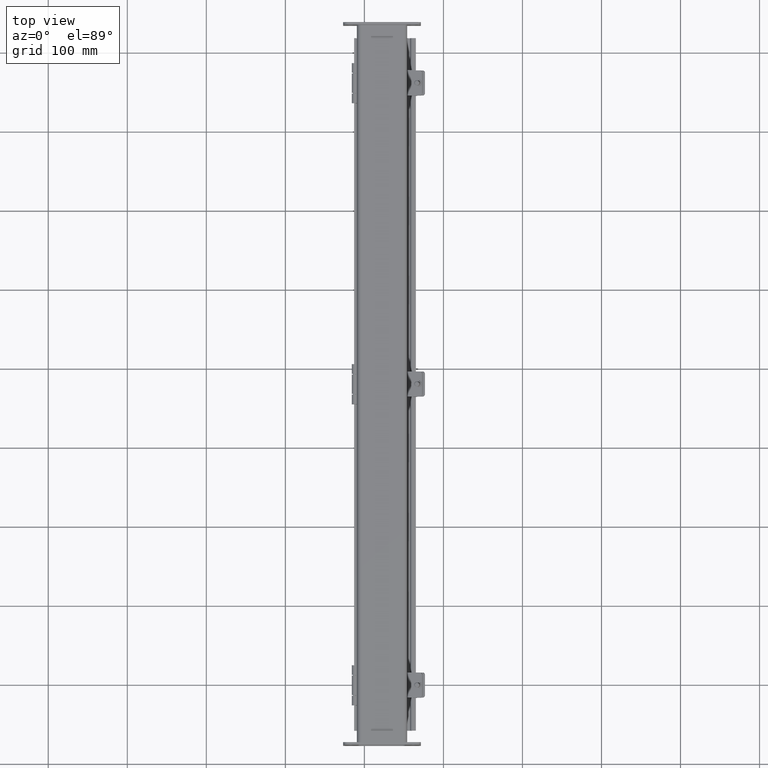
[diagram: clean part render]
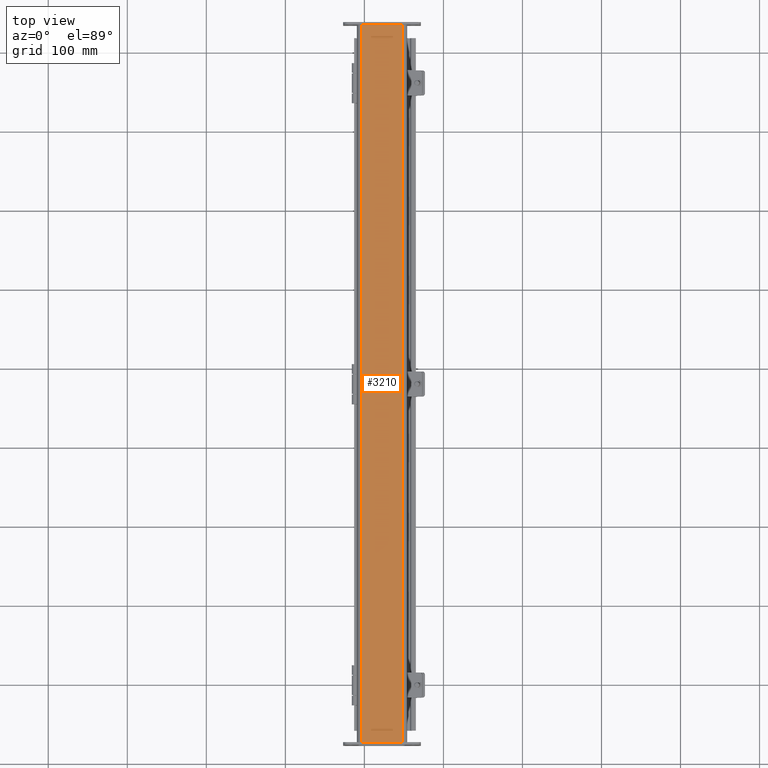
[diagram: same view with one face highlighted and labeled with its STEP entity id]
A machine part, top view. The second image highlights one B-rep face of the part: STEP entity #3210.
In plain terms, the highlighted planar face has unit normal (0, -0, 1).
Its self-contained STEP definition (entity closure, byte-faithful):
#204=PLANE($,#3439);
#347=FACE_OUTER_BOUND($,#524,.T.);
#524=EDGE_LOOP($,(#2295,#2296,#2297,#2298));
#882=LINE($,#4836,#1192);
#887=LINE($,#4854,#1197);
#891=LINE($,#4868,#1201);
#893=LINE($,#4871,#1203);
#1192=VECTOR($,#3845,36.);
#1197=VECTOR($,#3868,36.);
#1201=VECTOR($,#3888,2.0395);
#1203=VECTOR($,#3892,2.0395);
#1487=VERTEX_POINT($,#4833);
#1488=VERTEX_POINT($,#4835);
#1491=VERTEX_POINT($,#4851);
#1492=VERTEX_POINT($,#4853);
#1785=EDGE_CURVE($,#1488,#1487,#882,.T.);
#1794=EDGE_CURVE($,#1492,#1491,#887,.T.);
#1801=EDGE_CURVE($,#1488,#1491,#891,.T.);
#1803=EDGE_CURVE($,#1492,#1487,#893,.T.);
#2295=ORIENTED_EDGE($,*,*,#1785,.T.);
#2296=ORIENTED_EDGE($,*,*,#1803,.F.);
#2297=ORIENTED_EDGE($,*,*,#1794,.T.);
#2298=ORIENTED_EDGE($,*,*,#1801,.F.);
#3210=ADVANCED_FACE($,(#347),#204,.T.);
#3439=AXIS2_PLACEMENT_3D($,#4870,#3890,#3891);
#3845=DIRECTION($,(3.01110356634994E-016,-1.,0.));
#3868=DIRECTION($,(-1.84551508905319E-016,1.,0.));
#3888=DIRECTION($,(1.,0.,0.));
#3890=DIRECTION('center_axis',(0.,0.,1.));
#3891=DIRECTION('ref_axis',(1.,0.,0.));
#3892=DIRECTION($,(-1.,0.,0.));
#4833=CARTESIAN_POINT('',(-1.01974999999999,-18.,0.074));
#4835=CARTESIAN_POINT('',(-1.01975000000001,18.,0.074));
#4836=CARTESIAN_POINT($,(-1.01975,9.,0.074));
#4851=CARTESIAN_POINT('',(1.01974999999999,18.,0.074));
#4853=CARTESIAN_POINT('',(1.01975,-18.,0.074));
#4854=CARTESIAN_POINT($,(1.01975,-9.,0.074));
#4868=CARTESIAN_POINT($,(1.24999999999999,18.,0.074));
#4870=CARTESIAN_POINT('Origin',(-8.74191357972564E-016,1.0734904739401E-015,
0.074));
#4871=CARTESIAN_POINT($,(-1.24999999999999,-18.,0.074));